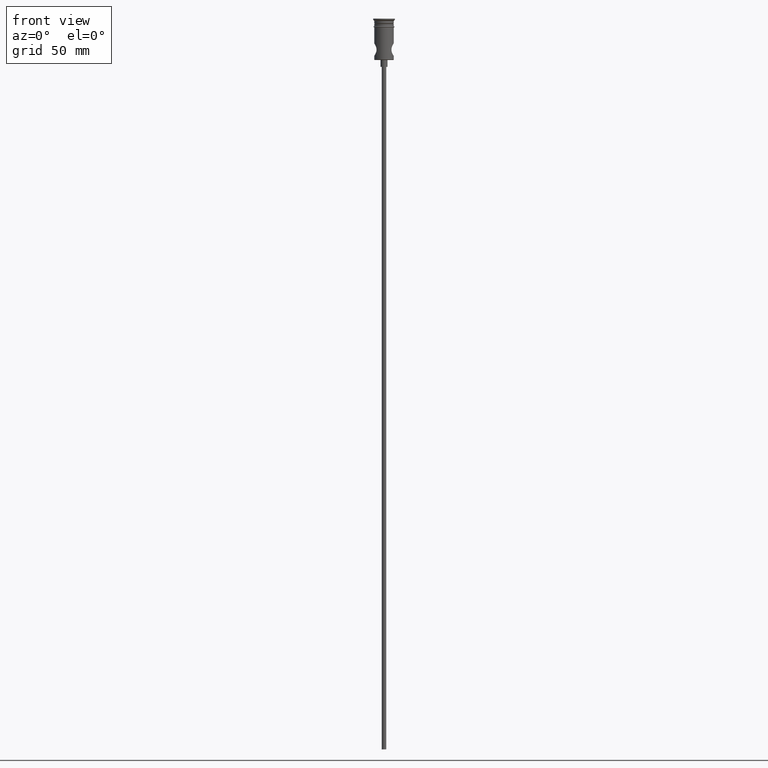
[diagram: clean part render]
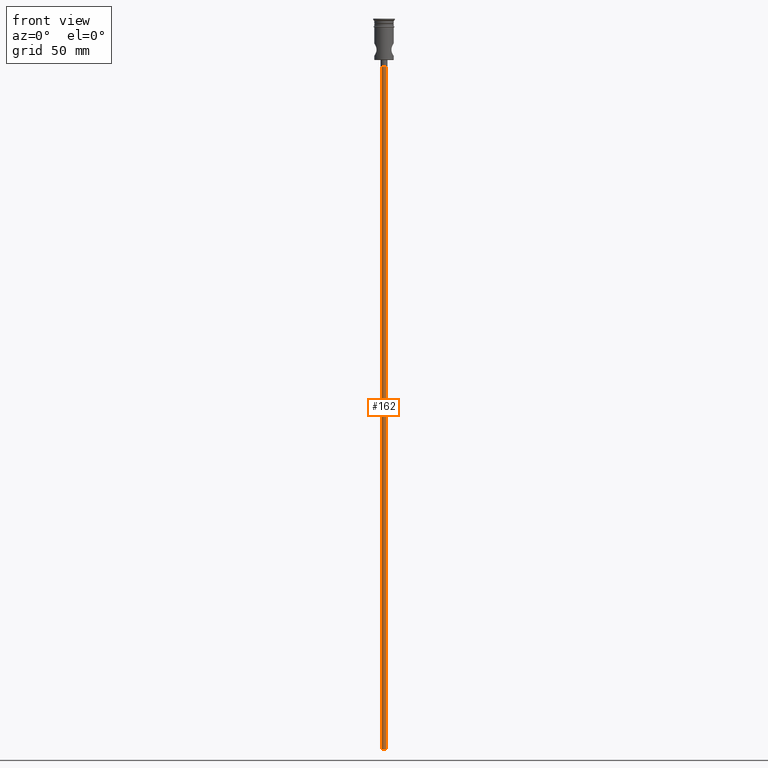
[diagram: same view with one face highlighted and labeled with its STEP entity id]
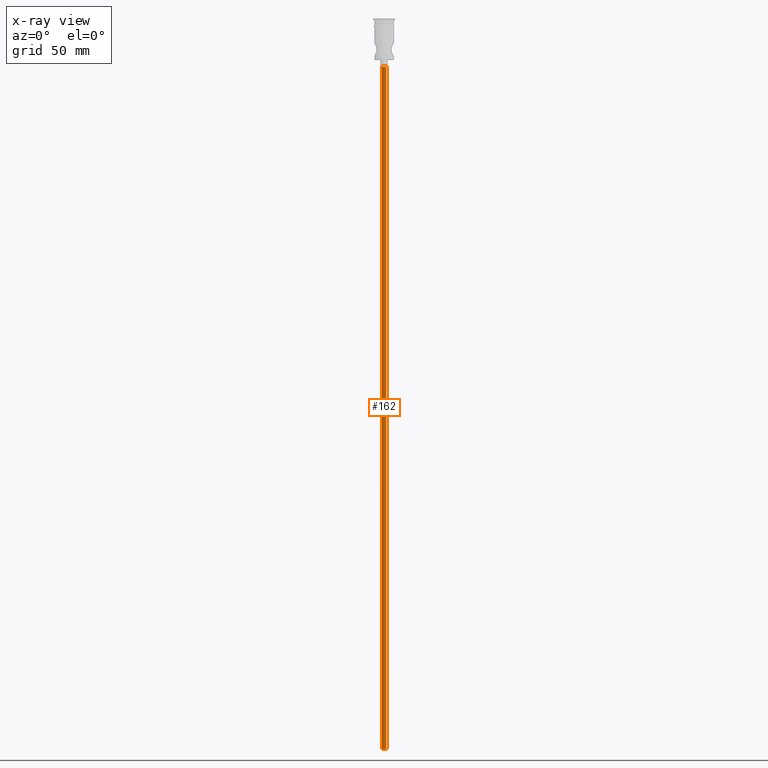
[diagram: x-ray of the same camera — body ghosted, the highlighted face saturated]
A machine part, front view. The second image highlights one B-rep face of the part: STEP entity #162.
The next image is the same camera in x-ray: the body ghosted, the highlighted face saturated — about 0% of this face is hidden behind the body in this view.
In plain terms, the highlighted cylindrical surface (edge-blend (fillet) strip) has radius 1 mm, axis along (-0, -0, 1).
Its self-contained STEP definition (entity closure, byte-faithful):
#30 = ORIENTED_EDGE ( 'NONE', *, *, #236, .F. ) ;
#70 = AXIS2_PLACEMENT_3D ( 'NONE', #281, #720, #1219 ) ;
#127 = DIRECTION ( 'NONE',  ( 1.000000000000000000, 0.000000000000000000, 0.000000000000000000 ) ) ;
#159 = ORIENTED_EDGE ( 'NONE', *, *, #1153, .T. ) ;
#162 = ADVANCED_FACE ( 'NONE', ( #345 ), #771, .T. ) ;
#165 = VECTOR ( 'NONE', #1380, 1000.000000000000000 ) ;
#223 = DIRECTION ( 'NONE',  ( -0.000000000000000000, -0.000000000000000000, 1.000000000000000000 ) ) ;
#228 = EDGE_CURVE ( 'NONE', #837, #942, #934, .T. ) ;
#236 = EDGE_CURVE ( 'NONE', #457, #837, #340, .T. ) ;
#261 = DIRECTION ( 'NONE',  ( -0.000000000000000000, -0.000000000000000000, 1.000000000000000000 ) ) ;
#281 = CARTESIAN_POINT ( 'NONE',  ( 0.000000000000000000, 0.000000000000000000, -318.0000000000000000 ) ) ;
#340 = CIRCLE ( 'NONE', #70, 0.9999999999999997780 ) ;
#345 = FACE_OUTER_BOUND ( 'NONE', #1132, .T. ) ;
#355 = CARTESIAN_POINT ( 'NONE',  ( 0.9999999999999997780, 0.000000000000000000, -318.0000000000000000 ) ) ;
#372 = DIRECTION ( 'NONE',  ( 0.000000000000000000, 0.000000000000000000, -1.000000000000000000 ) ) ;
#401 = VECTOR ( 'NONE', #261, 1000.000000000000000 ) ;
#442 = EDGE_CURVE ( 'NONE', #457, #1375, #581, .T. ) ;
#457 = VERTEX_POINT ( 'NONE', #355 ) ;
#495 = AXIS2_PLACEMENT_3D ( 'NONE', #1211, #223, #127 ) ;
#581 = LINE ( 'NONE', #899, #401 ) ;
#597 = DIRECTION ( 'NONE',  ( -1.000000000000000000, 0.000000000000000000, 0.000000000000000000 ) ) ;
#628 = CARTESIAN_POINT ( 'NONE',  ( -0.9999999999999997780, 1.224646799147352961E-16, -318.0000000000000000 ) ) ;
#720 = DIRECTION ( 'NONE',  ( 0.000000000000000000, 0.000000000000000000, -1.000000000000000000 ) ) ;
#771 = CYLINDRICAL_SURFACE ( 'NONE', #495, 0.9999999999999997780 ) ;
#837 = VERTEX_POINT ( 'NONE', #628 ) ;
#899 = CARTESIAN_POINT ( 'NONE',  ( 0.9999999999999997780, 0.000000000000000000, -318.0000000000000000 ) ) ;
#902 = ORIENTED_EDGE ( 'NONE', *, *, #228, .F. ) ;
#919 = CARTESIAN_POINT ( 'NONE',  ( 0.000000000000000000, 0.000000000000000000, -20.99999999999999645 ) ) ;
#934 = LINE ( 'NONE', #949, #165 ) ;
#942 = VERTEX_POINT ( 'NONE', #1346 ) ;
#949 = CARTESIAN_POINT ( 'NONE',  ( -0.9999999999999997780, 1.224646799147352961E-16, -318.0000000000000000 ) ) ;
#963 = AXIS2_PLACEMENT_3D ( 'NONE', #919, #372, #597 ) ;
#975 = CARTESIAN_POINT ( 'NONE',  ( 0.9999999999999997780, 0.000000000000000000, -20.99999999999999645 ) ) ;
#1057 = CIRCLE ( 'NONE', #963, 0.9999999999999997780 ) ;
#1132 = EDGE_LOOP ( 'NONE', ( #902, #30, #1351, #159 ) ) ;
#1153 = EDGE_CURVE ( 'NONE', #1375, #942, #1057, .T. ) ;
#1211 = CARTESIAN_POINT ( 'NONE',  ( 0.000000000000000000, 0.000000000000000000, -318.0000000000000000 ) ) ;
#1219 = DIRECTION ( 'NONE',  ( -1.000000000000000000, 0.000000000000000000, 0.000000000000000000 ) ) ;
#1346 = CARTESIAN_POINT ( 'NONE',  ( -0.9999999999999997780, 1.224646799147352961E-16, -20.99999999999999645 ) ) ;
#1351 = ORIENTED_EDGE ( 'NONE', *, *, #442, .T. ) ;
#1375 = VERTEX_POINT ( 'NONE', #975 ) ;
#1380 = DIRECTION ( 'NONE',  ( -0.000000000000000000, -0.000000000000000000, 1.000000000000000000 ) ) ;